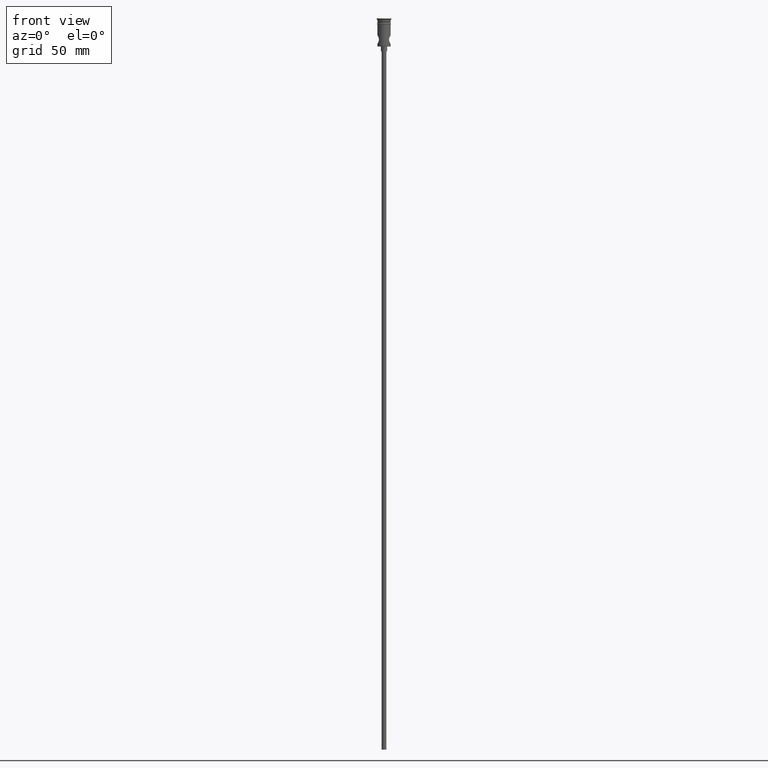
[diagram: clean part render]
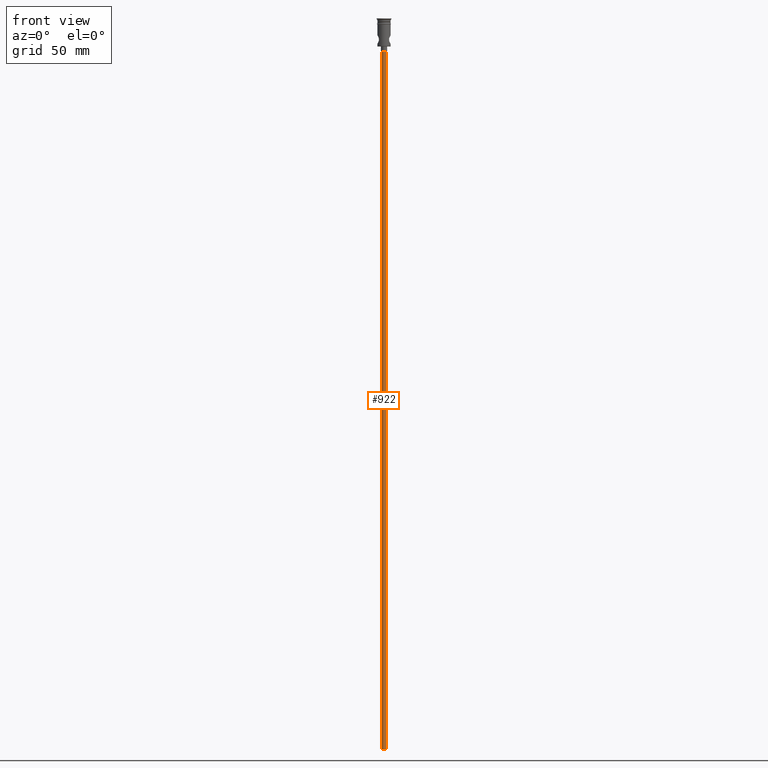
[diagram: same view with one face highlighted and labeled with its STEP entity id]
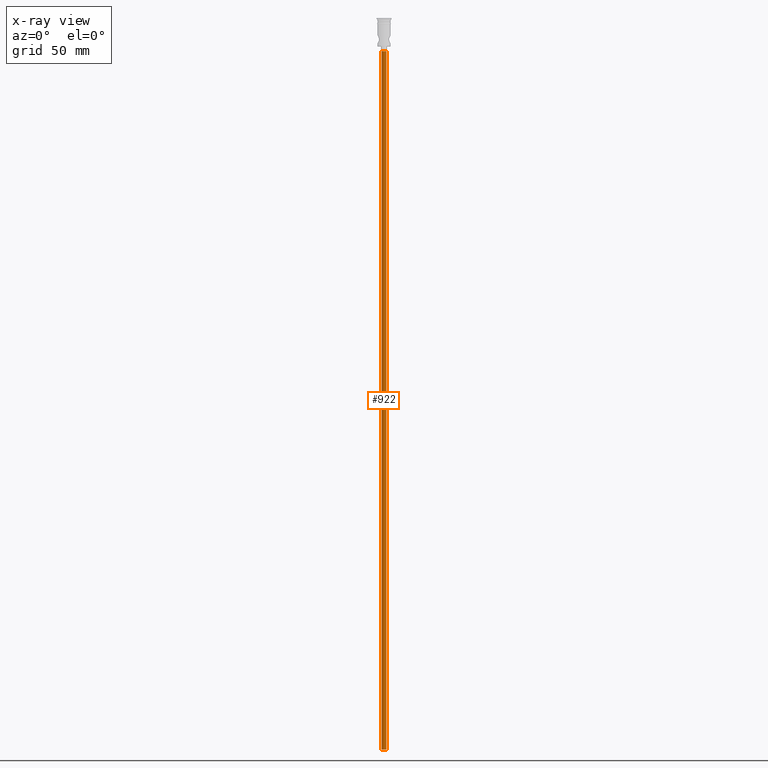
[diagram: x-ray of the same camera — body ghosted, the highlighted face saturated]
A machine part, front view. The second image highlights one B-rep face of the part: STEP entity #922.
The next image is the same camera in x-ray: the body ghosted, the highlighted face saturated — about 0% of this face is hidden behind the body in this view.
In plain terms, the highlighted cylindrical surface (edge-blend (fillet) strip) has radius 1.5 mm, axis along (-0, -0, 1).
Its self-contained STEP definition (entity closure, byte-faithful):
#7 = VECTOR ( 'NONE', #1172, 1000.000000000000000 ) ;
#72 = CIRCLE ( 'NONE', #732, 1.500000000000000222 ) ;
#152 = CARTESIAN_POINT ( 'NONE',  ( 1.500000000000000222, 0.000000000000000000, -20.99999999999999645 ) ) ;
#158 = FACE_OUTER_BOUND ( 'NONE', #433, .T. ) ;
#174 = CYLINDRICAL_SURFACE ( 'NONE', #1278, 1.500000000000000222 ) ;
#176 = DIRECTION ( 'NONE',  ( -0.000000000000000000, -0.000000000000000000, 1.000000000000000000 ) ) ;
#177 = CARTESIAN_POINT ( 'NONE',  ( 1.500000000000000222, 0.000000000000000000, -468.0000000000000000 ) ) ;
#207 = EDGE_CURVE ( 'NONE', #1320, #349, #408, .T. ) ;
#265 = CARTESIAN_POINT ( 'NONE',  ( 0.000000000000000000, 0.000000000000000000, -468.0000000000000000 ) ) ;
#291 = VERTEX_POINT ( 'NONE', #727 ) ;
#349 = VERTEX_POINT ( 'NONE', #873 ) ;
#408 = CIRCLE ( 'NONE', #933, 1.500000000000000222 ) ;
#414 = DIRECTION ( 'NONE',  ( -0.000000000000000000, -0.000000000000000000, 1.000000000000000000 ) ) ;
#419 = DIRECTION ( 'NONE',  ( 0.000000000000000000, 0.000000000000000000, -1.000000000000000000 ) ) ;
#433 = EDGE_LOOP ( 'NONE', ( #784, #1210, #767, #543 ) ) ;
#481 = DIRECTION ( 'NONE',  ( -1.000000000000000000, 0.000000000000000000, 0.000000000000000000 ) ) ;
#489 = EDGE_CURVE ( 'NONE', #291, #349, #947, .T. ) ;
#530 = DIRECTION ( 'NONE',  ( 1.000000000000000000, 0.000000000000000000, 0.000000000000000000 ) ) ;
#543 = ORIENTED_EDGE ( 'NONE', *, *, #207, .T. ) ;
#572 = CARTESIAN_POINT ( 'NONE',  ( 0.000000000000000000, 0.000000000000000000, -20.99999999999999645 ) ) ;
#582 = DIRECTION ( 'NONE',  ( 0.000000000000000000, 0.000000000000000000, -1.000000000000000000 ) ) ;
#727 = CARTESIAN_POINT ( 'NONE',  ( -1.500000000000000222, 1.836970198721030181E-16, -468.0000000000000000 ) ) ;
#732 = AXIS2_PLACEMENT_3D ( 'NONE', #1128, #582, #481 ) ;
#767 = ORIENTED_EDGE ( 'NONE', *, *, #1363, .T. ) ;
#784 = ORIENTED_EDGE ( 'NONE', *, *, #489, .F. ) ;
#827 = LINE ( 'NONE', #951, #7 ) ;
#873 = CARTESIAN_POINT ( 'NONE',  ( -1.500000000000000222, 1.836970198721030181E-16, -20.99999999999999645 ) ) ;
#922 = ADVANCED_FACE ( 'NONE', ( #158 ), #174, .T. ) ;
#933 = AXIS2_PLACEMENT_3D ( 'NONE', #572, #419, #1177 ) ;
#947 = LINE ( 'NONE', #1170, #1121 ) ;
#951 = CARTESIAN_POINT ( 'NONE',  ( 1.500000000000000222, 0.000000000000000000, -468.0000000000000000 ) ) ;
#1121 = VECTOR ( 'NONE', #176, 1000.000000000000000 ) ;
#1128 = CARTESIAN_POINT ( 'NONE',  ( 0.000000000000000000, 0.000000000000000000, -468.0000000000000000 ) ) ;
#1170 = CARTESIAN_POINT ( 'NONE',  ( -1.500000000000000222, 1.836970198721030181E-16, -468.0000000000000000 ) ) ;
#1172 = DIRECTION ( 'NONE',  ( -0.000000000000000000, -0.000000000000000000, 1.000000000000000000 ) ) ;
#1177 = DIRECTION ( 'NONE',  ( -1.000000000000000000, 0.000000000000000000, 0.000000000000000000 ) ) ;
#1210 = ORIENTED_EDGE ( 'NONE', *, *, #1238, .F. ) ;
#1238 = EDGE_CURVE ( 'NONE', #1374, #291, #72, .T. ) ;
#1278 = AXIS2_PLACEMENT_3D ( 'NONE', #265, #414, #530 ) ;
#1320 = VERTEX_POINT ( 'NONE', #152 ) ;
#1363 = EDGE_CURVE ( 'NONE', #1374, #1320, #827, .T. ) ;
#1374 = VERTEX_POINT ( 'NONE', #177 ) ;